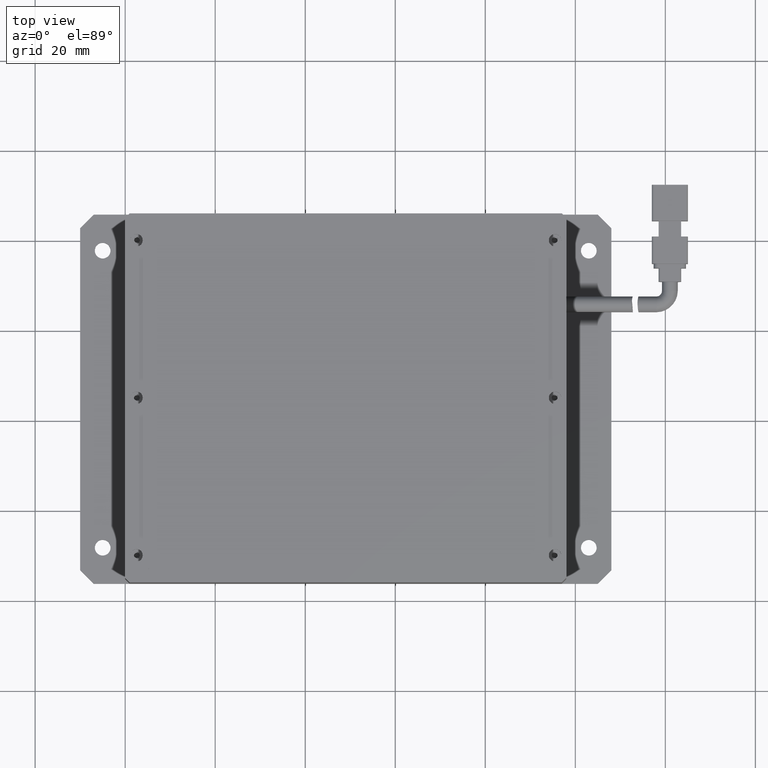
[diagram: clean part render]
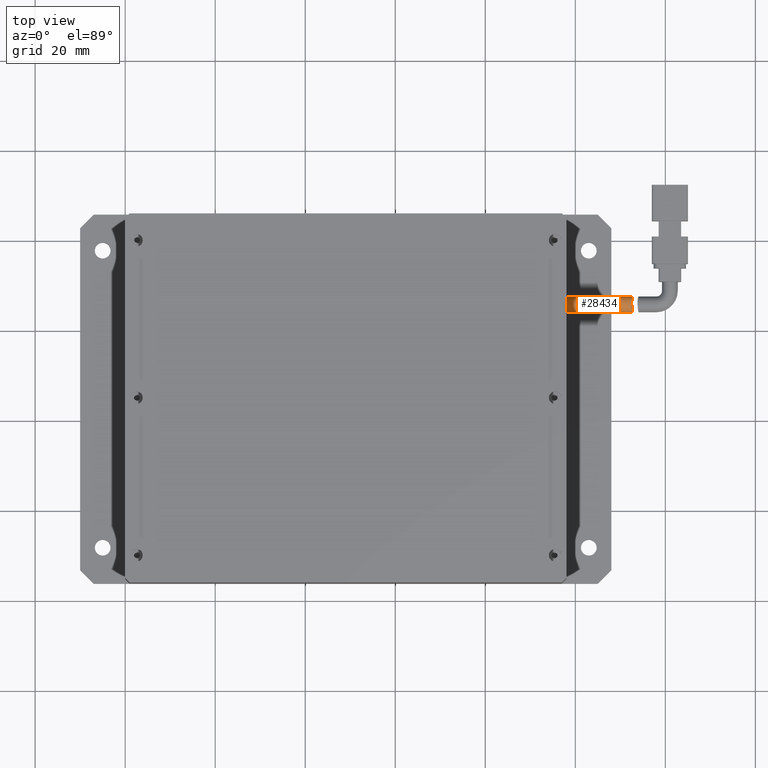
[diagram: same view with one face highlighted and labeled with its STEP entity id]
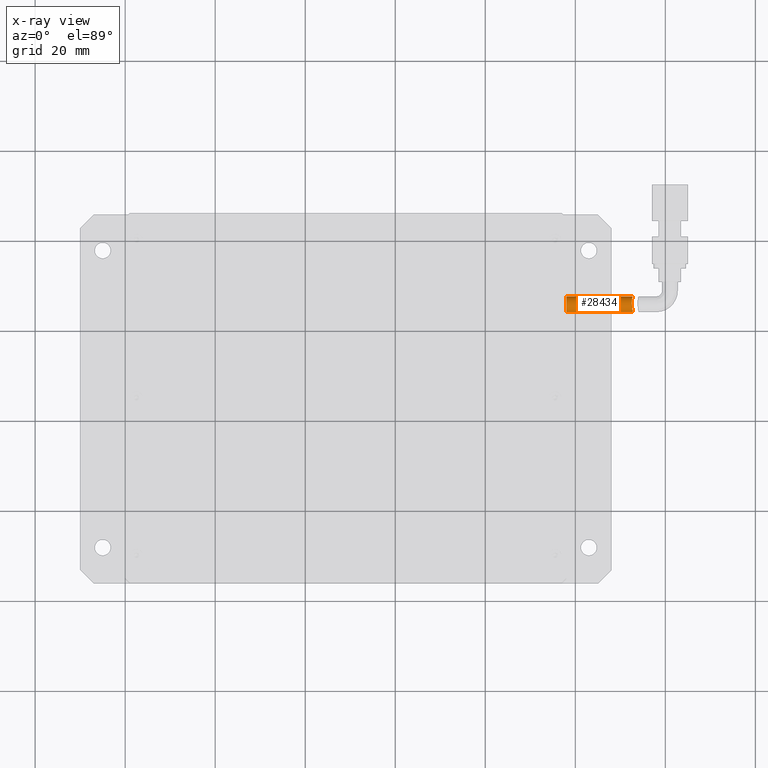
[diagram: x-ray of the same camera — body ghosted, the highlighted face saturated]
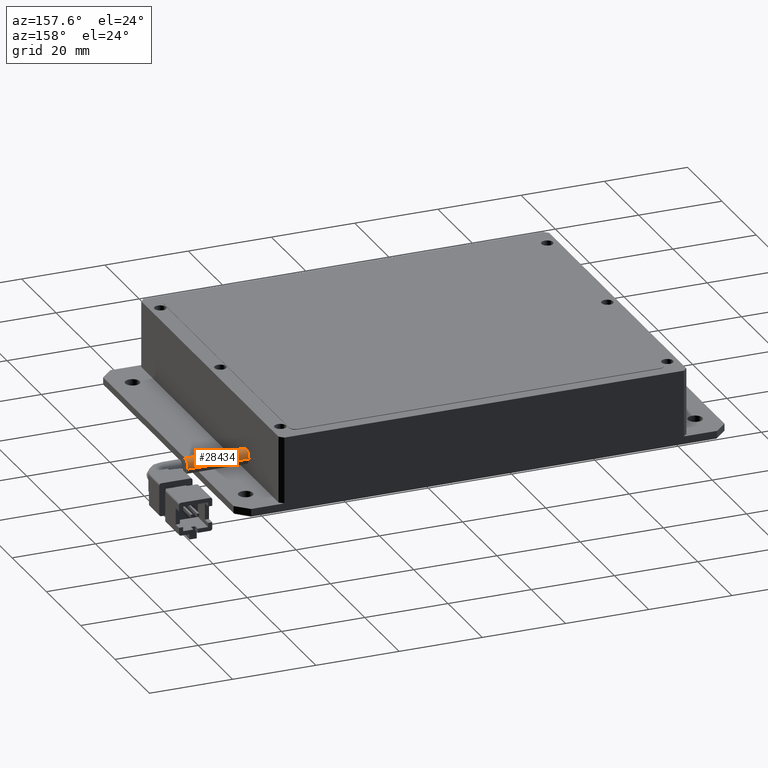
[diagram: same view with one face highlighted and labeled with its STEP entity id]
A machine part, top view. The second image highlights one B-rep face of the part: STEP entity #28434.
The next image is the same camera in x-ray: the body ghosted, the highlighted face saturated — about 0% of this face is hidden behind the body in this view.
A second angle (auxiliary view) of the same face is appended — the face is thin or edge-on in the first view.
In plain terms, the highlighted cylindrical surface (edge-blend (fillet) strip) has radius 1.75 mm, axis along (-1, 0, 0).
Its self-contained STEP definition (entity closure, byte-faithful):
#3279 = CARTESIAN_POINT ( 'NONE',  ( 72.71381798566818600, 24.46211948964048600, 4.568188415521639500 ) ) ;
#3452 = CARTESIAN_POINT ( 'NONE',  ( 72.65424832023558100, 27.24364953598304200, 4.568417009490242500 ) ) ;
#4283 = VERTEX_POINT ( 'NONE', #12452 ) ;
#5204 = VERTEX_POINT ( 'NONE', #47094 ) ;
#5270 = EDGE_LOOP ( 'NONE', ( #47472, #8490, #50450, #17609 ) ) ;
#7413 = CARTESIAN_POINT ( 'NONE',  ( 72.66047130368551200, 24.77731164660563200, 4.898983333042459700 ) ) ;
#7592 = CARTESIAN_POINT ( 'NONE',  ( 72.69614378026538800, 27.42510553884965700, 4.277188015042066900 ) ) ;
#8490 = ORIENTED_EDGE ( 'NONE', *, *, #22558, .T. ) ;
#9851 = AXIS2_PLACEMENT_3D ( 'NONE', #11200, #39964, #15348 ) ;
#11200 = CARTESIAN_POINT ( 'NONE',  ( 58.00152730049637700, 25.85299732722415900, 3.499999999995517400 ) ) ;
#11554 = CARTESIAN_POINT ( 'NONE',  ( 72.58203419727890100, 25.39172736702606100, 5.203361838495818700 ) ) ;
#11742 = CARTESIAN_POINT ( 'NONE',  ( 72.74524673965666500, 27.60299732722416300, 3.732161965895538700 ) ) ;
#12452 = CARTESIAN_POINT ( 'NONE',  ( 58.00152730049637700, 24.10299732722415900, 3.499999999995516000 ) ) ;
#13195 = CARTESIAN_POINT ( 'NONE',  ( 78.00152730049637700, 25.85299732722415900, 3.499999999995512900 ) ) ;
#13374 = DIRECTION ( 'NONE',  ( -1.000000000000000000, 1.536194552555083200E-017, 2.339027312099220900E-016 ) ) ;
#15348 = DIRECTION ( 'NONE',  ( 0.0000000000000000000, 1.000000000000000000, -2.478176394252579200E-016 ) ) ;
#15546 = CARTESIAN_POINT ( 'NONE',  ( 72.78236723299367800, 24.10299732722415600, 3.616052899516888800 ) ) ;
#15732 = CARTESIAN_POINT ( 'NONE',  ( 72.54867533454225300, 25.96528965226579900, 5.250139874396920100 ) ) ;
#15823 = VECTOR ( 'NONE', #29489, 1000.000000000000000 ) ;
#17609 = ORIENTED_EDGE ( 'NONE', *, *, #48018, .T. ) ;
#19322 = CARTESIAN_POINT ( 'NONE',  ( 78.00152730049637700, 27.60299732722416300, 3.499999999995512500 ) ) ;
#19863 = CARTESIAN_POINT ( 'NONE',  ( 72.54895618957624500, 26.30681384673475200, 5.194023032859822000 ) ) ;
#22558 = EDGE_CURVE ( 'NONE', #38200, #52726, #33522, .T. ) ;
#23887 = CARTESIAN_POINT ( 'NONE',  ( 72.76437708838990700, 24.19302541970757800, 4.065826740932068100 ) ) ;
#24060 = CARTESIAN_POINT ( 'NONE',  ( 72.57296415906166900, 26.73518127169617400, 5.028794678297859200 ) ) ;
#25321 = LINE ( 'NONE', #19322, #45895 ) ;
#25644 = EDGE_CURVE ( 'NONE', #38200, #4283, #48668, .T. ) ;
#26220 = CYLINDRICAL_SURFACE ( 'NONE', #50345, 1.750000000000001600 ) ;
#26600 = EDGE_CURVE ( 'NONE', #52726, #5204, #25321, .T. ) ;
#27599 = CARTESIAN_POINT ( 'NONE',  ( 72.74524673965667900, 27.60299732722416300, 3.499999999995513800 ) ) ;
#27762 = DIRECTION ( 'NONE',  ( -1.000000000000000000, 1.536194552555083200E-017, 2.339027312099220900E-016 ) ) ;
#27969 = CARTESIAN_POINT ( 'NONE',  ( 72.73706568370039300, 24.33497891270727500, 4.378172957523432300 ) ) ;
#28142 = CARTESIAN_POINT ( 'NONE',  ( 72.63960561015028400, 27.17159890954427600, 4.656271316453469000 ) ) ;
#28434 = ADVANCED_FACE ( 'NONE', ( #37803 ), #26220, .T. ) ;
#29489 = DIRECTION ( 'NONE',  ( -1.000000000000000000, 1.536194552555083200E-017, 2.339027312099220900E-016 ) ) ;
#29904 = DIRECTION ( 'NONE',  ( 0.0000000000000000000, 1.000000000000000000, -2.478176394252579200E-016 ) ) ;
#32055 = CARTESIAN_POINT ( 'NONE',  ( 72.70075695400166200, 24.53586346910538700, 4.657841488371571100 ) ) ;
#32238 = CARTESIAN_POINT ( 'NONE',  ( 72.68245870258469700, 27.37021121485096500, 4.379483081752048300 ) ) ;
#33522 = B_SPLINE_CURVE_WITH_KNOTS ( 'NONE', 3,
 ( #44309, #15546, #40153, #48464, #23887, #52628, #27969, #3279, #32055, #7413, #36231, #11554, #40345, #15732, #44478, #19863, #48652, #24060, #52804, #28142, #3452, #32238, #7592, #36404, #11742, #40521 ),
 .UNSPECIFIED., .F., .F.,
 ( 4, 2, 2, 2, 2, 2, 2, 2, 2, 2, 2, 2, 4 ),
 ( 2.195984522899319700E-017, 0.0003431607499797114900, 0.0006863214999594010700, 0.001029482249939090400, 0.001372642999918780000, 0.002058964499878164800, 0.002745285999837549200, 0.003088446749817241600, 0.003431607499796933200, 0.004117928999756307100, 0.004461089749735991700, 0.004804250499715675500, 0.005490571999675049000 ),
 .UNSPECIFIED. ) ;
#33780 = CARTESIAN_POINT ( 'NONE',  ( 78.00152730049637700, 24.10299732722415900, 3.499999999995512900 ) ) ;
#36231 = CARTESIAN_POINT ( 'NONE',  ( 72.63106975379382400, 24.97171420923548300, 5.028905358409975400 ) ) ;
#36404 = CARTESIAN_POINT ( 'NONE',  ( 72.73071873189120100, 27.55662836284987800, 3.960785257602499800 ) ) ;
#37586 = CIRCLE ( 'NONE', #9851, 1.750000000000001600 ) ;
#37803 = FACE_OUTER_BOUND ( 'NONE', #5270, .T. ) ;
#38200 = VERTEX_POINT ( 'NONE', #41985 ) ;
#39964 = DIRECTION ( 'NONE',  ( 1.000000000000000000, -1.536194552555083200E-017, -2.339027312099220900E-016 ) ) ;
#40153 = CARTESIAN_POINT ( 'NONE',  ( 72.78004893374408400, 24.11442687952659000, 3.730108151942248500 ) ) ;
#40345 = CARTESIAN_POINT ( 'NONE',  ( 72.56214707163893300, 25.62193540860887000, 5.249716255476839100 ) ) ;
#40521 = CARTESIAN_POINT ( 'NONE',  ( 72.74524673965667900, 27.60299732722416300, 3.499999999995513800 ) ) ;
#41985 = CARTESIAN_POINT ( 'NONE',  ( 72.78236723299366400, 24.10299732722415900, 3.499999999995513800 ) ) ;
#44309 = CARTESIAN_POINT ( 'NONE',  ( 72.78236723299366400, 24.10299732722415900, 3.499999999995513800 ) ) ;
#44478 = CARTESIAN_POINT ( 'NONE',  ( 72.54680231544954000, 26.08175546475252200, 5.238773471086569900 ) ) ;
#45895 = VECTOR ( 'NONE', #27762, 1000.000000000000000 ) ;
#47094 = CARTESIAN_POINT ( 'NONE',  ( 58.00152730049637700, 27.60299732722416300, 3.499999999995516900 ) ) ;
#47472 = ORIENTED_EDGE ( 'NONE', *, *, #25644, .F. ) ;
#48018 = EDGE_CURVE ( 'NONE', #5204, #4283, #37586, .T. ) ;
#48464 = CARTESIAN_POINT ( 'NONE',  ( 72.77111031921863600, 24.15915641973686300, 3.954400641854934200 ) ) ;
#48652 = CARTESIAN_POINT ( 'NONE',  ( 72.55289730822252600, 26.41624598913341200, 5.160870664716267000 ) ) ;
#48668 = LINE ( 'NONE', #33780, #15823 ) ;
#50345 = AXIS2_PLACEMENT_3D ( 'NONE', #13195, #13374, #29904 ) ;
#50450 = ORIENTED_EDGE ( 'NONE', *, *, #26600, .T. ) ;
#52628 = CARTESIAN_POINT ( 'NONE',  ( 72.74732067668234900, 24.28112165243644000, 4.277736136171386100 ) ) ;
#52726 = VERTEX_POINT ( 'NONE', #27599 ) ;
#52804 = CARTESIAN_POINT ( 'NONE',  ( 72.59735757306565100, 26.92812386859669300, 4.899748863427252100 ) ) ;